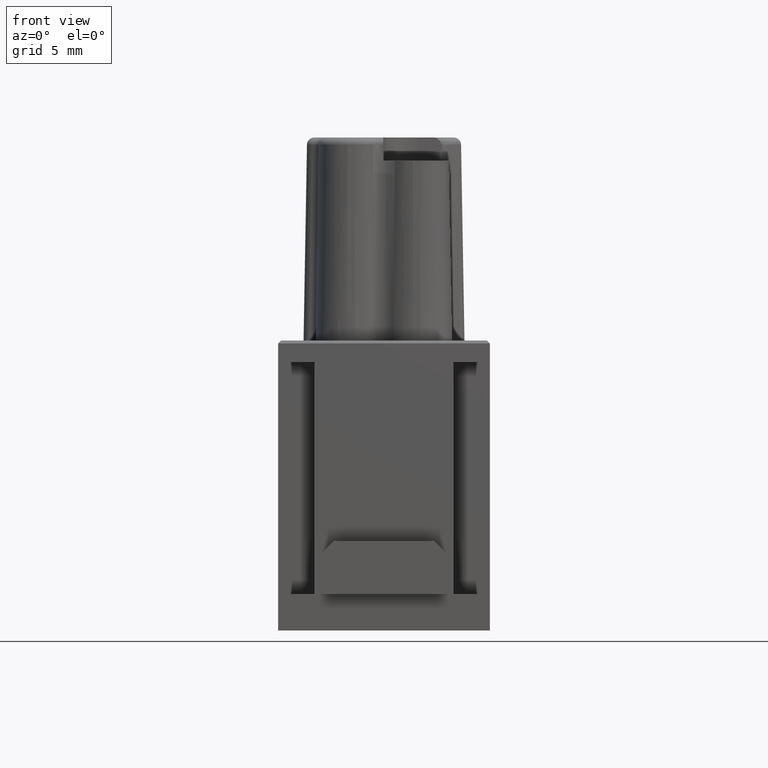
[diagram: clean part render]
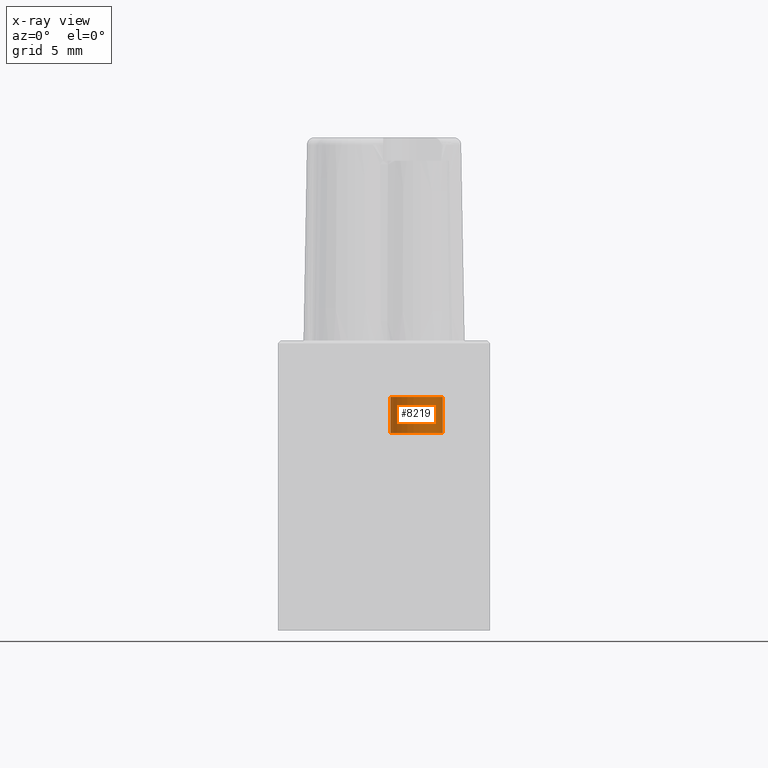
[diagram: x-ray — body ghosted, one internal face saturated and labeled with its STEP entity id]
A machine part, front view, then the same camera in x-ray: the body is ghosted and one INTERNAL B-rep face — a face not visible from any outside direction — is saturated and labeled: STEP entity #8219.
In plain terms, the highlighted cylindrical surface (edge-blend (fillet) strip) has radius 1.8 mm, axis along (0, 0, -1).
Its self-contained STEP definition (entity closure, byte-faithful):
#1309=CARTESIAN_POINT('',(2.25E0,1.125E1,1.361547005384E1));
#1310=DIRECTION('',(0.E0,0.E0,1.E0));
#1311=DIRECTION('',(-1.E0,0.E0,0.E0));
#1312=AXIS2_PLACEMENT_3D('',#1309,#1310,#1311);
#1319=DIRECTION('',(-9.077344329314E-14,0.E0,-1.E0));
#1320=VECTOR('',#1319,2.485278848300E0);
#1321=CARTESIAN_POINT('',(4.05E0,1.125E1,1.610074890214E1));
#1322=LINE('',#1321,#1320);
#1323=DIRECTION('',(9.059475541264E-14,0.E0,-1.E0));
#1324=VECTOR('',#1323,2.485278848300E0);
#1325=CARTESIAN_POINT('',(4.5E-1,1.125E1,1.610074890214E1));
#1326=LINE('',#1325,#1324);
#1376=CARTESIAN_POINT('',(2.25E0,1.125E1,1.610074890214E1));
#1377=DIRECTION('',(0.E0,0.E0,-1.E0));
#1378=DIRECTION('',(1.E0,0.E0,0.E0));
#1379=AXIS2_PLACEMENT_3D('',#1376,#1377,#1378);
#4396=CARTESIAN_POINT('',(4.05E0,1.125E1,1.361547005384E1));
#4397=CARTESIAN_POINT('',(4.500000000004E-1,1.125E1,1.361547005384E1));
#4398=VERTEX_POINT('',#4396);
#4399=VERTEX_POINT('',#4397);
#4400=CARTESIAN_POINT('',(4.5E-1,1.125E1,1.610074890214E1));
#4401=VERTEX_POINT('',#4400);
#4402=CARTESIAN_POINT('',(4.05E0,1.125E1,1.610074890214E1));
#4403=VERTEX_POINT('',#4402);
#8205=CARTESIAN_POINT('',(2.25E0,1.125E1,1.62E1));
#8206=DIRECTION('',(0.E0,0.E0,-1.E0));
#8207=DIRECTION('',(-1.E0,0.E0,0.E0));
#8208=AXIS2_PLACEMENT_3D('',#8205,#8206,#8207);
#8209=CYLINDRICAL_SURFACE('',#8208,1.8E0);
#8210=ORIENTED_EDGE('',*,*,#8195,.T.);
#8212=ORIENTED_EDGE('',*,*,#8211,.F.);
#8214=ORIENTED_EDGE('',*,*,#8213,.T.);
#8216=ORIENTED_EDGE('',*,*,#8215,.T.);
#8217=EDGE_LOOP('',(#8210,#8212,#8214,#8216));
#8218=FACE_OUTER_BOUND('',#8217,.F.);
#8219=ADVANCED_FACE('',(#8218),#8209,.F.);
#1313=CIRCLE('',#1312,1.8E0);
#1380=CIRCLE('',#1379,1.8E0);
#8195=EDGE_CURVE('',#4399,#4398,#1313,.T.);
#8211=EDGE_CURVE('',#4403,#4398,#1322,.T.);
#8213=EDGE_CURVE('',#4403,#4401,#1380,.T.);
#8215=EDGE_CURVE('',#4401,#4399,#1326,.T.);